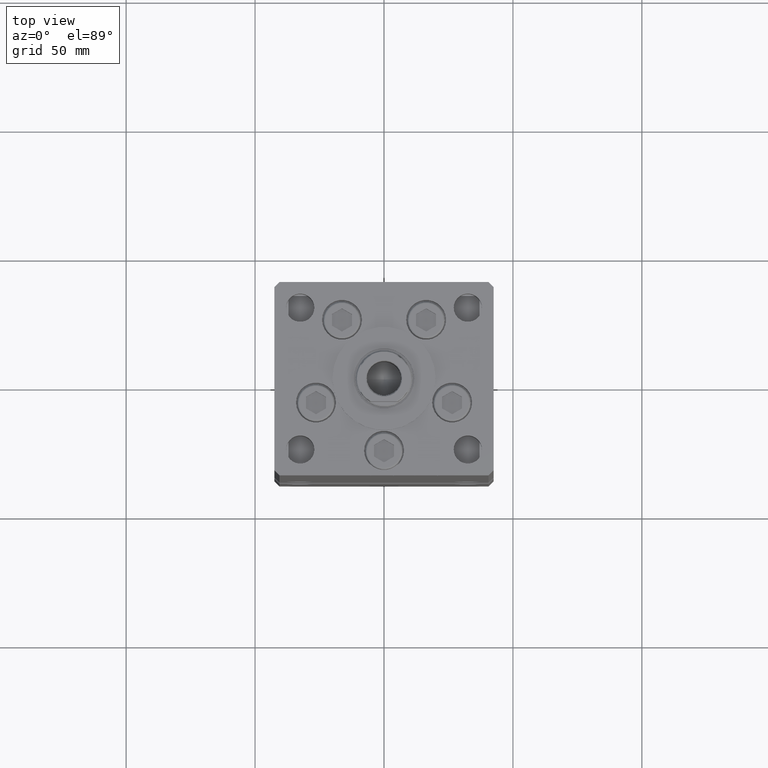
[diagram: clean part render]
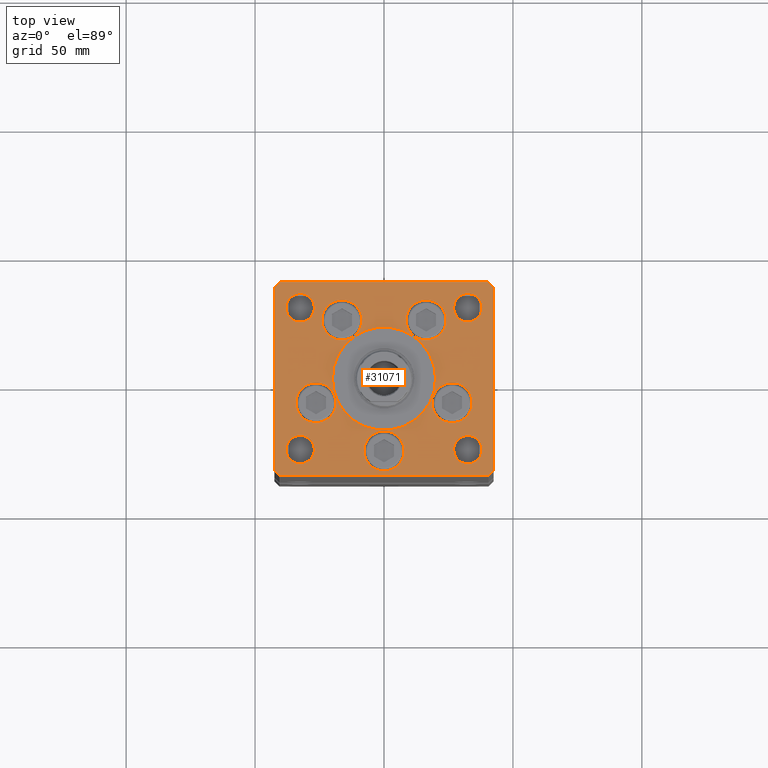
[diagram: same view with one face highlighted and labeled with its STEP entity id]
A machine part, top view. The second image highlights one B-rep face of the part: STEP entity #31071.
In plain terms, the highlighted planar face has unit normal (0, 0, 1).
Its self-contained STEP definition (entity closure, byte-faithful):
#140 = CARTESIAN_POINT ( 'NONE',  ( 16.32291334290544071, 22.74999999999999289, 0.000000000000000000 ) ) ;
#224 = CARTESIAN_POINT ( 'NONE',  ( -16.32291334290544071, 22.74999999999999289, 0.000000000000000000 ) ) ;
#411 = DIRECTION ( 'NONE',  ( 1.000000000000000000, 0.000000000000000000, 0.000000000000000000 ) ) ;
#438 = CARTESIAN_POINT ( 'NONE',  ( 0.000000000000000000, 0.000000000000000000, 0.000000000000000000 ) ) ;
#958 = VERTEX_POINT ( 'NONE', #39525 ) ;
#967 = CARTESIAN_POINT ( 'NONE',  ( 32.50000000000000000, -27.50000000000000355, 0.000000000000000000 ) ) ;
#992 = VERTEX_POINT ( 'NONE', #7016 ) ;
#1220 = CIRCLE ( 'NONE', #8932, 7.750000000000000000 ) ;
#1282 = DIRECTION ( 'NONE',  ( 1.000000000000000000, 0.000000000000000000, 0.000000000000000000 ) ) ;
#1475 = LINE ( 'NONE', #46095, #4327 ) ;
#1814 = CIRCLE ( 'NONE', #52471, 7.750000000000000000 ) ;
#1934 = VERTEX_POINT ( 'NONE', #5625 ) ;
#2290 = CIRCLE ( 'NONE', #7468, 5.499999999999998224 ) ;
#2396 = VERTEX_POINT ( 'NONE', #17576 ) ;
#2399 = VECTOR ( 'NONE', #21499, 1000.000000000000000 ) ;
#2525 = VERTEX_POINT ( 'NONE', #35765 ) ;
#2537 = VERTEX_POINT ( 'NONE', #40605 ) ;
#2950 = FACE_OUTER_BOUND ( 'NONE', #50323, .T. ) ;
#2974 = DIRECTION ( 'NONE',  ( 1.000000000000000000, 0.000000000000000000, 0.000000000000000000 ) ) ;
#3033 = EDGE_CURVE ( 'NONE', #25234, #45111, #42919, .T. ) ;
#3306 = EDGE_CURVE ( 'NONE', #28194, #25234, #36505, .T. ) ;
#3418 = EDGE_CURVE ( 'NONE', #52264, #2396, #48021, .T. ) ;
#3628 = CARTESIAN_POINT ( 'NONE',  ( 0.000000000000000000, -28.00000000000000000, 0.000000000000000000 ) ) ;
#3764 = CARTESIAN_POINT ( 'NONE',  ( 0.000000000000000000, -28.00000000000000000, 0.000000000000000000 ) ) ;
#3985 = CARTESIAN_POINT ( 'NONE',  ( -40.50000000000000711, -37.50000000000003553, 0.000000000000000000 ) ) ;
#4327 = VECTOR ( 'NONE', #33980, 1000.000000000000000 ) ;
#4392 = DIRECTION ( 'NONE',  ( 0.000000000000000000, 0.000000000000000000, 1.000000000000000000 ) ) ;
#4458 = ORIENTED_EDGE ( 'NONE', *, *, #37705, .F. ) ;
#4476 = PLANE ( 'NONE',  #6288 ) ;
#5046 = AXIS2_PLACEMENT_3D ( 'NONE', #3628, #32876, #17277 ) ;
#5061 = EDGE_CURVE ( 'NONE', #26540, #38386, #7583, .T. ) ;
#5538 = DIRECTION ( 'NONE',  ( -1.000000000000000000, 0.000000000000000000, 0.000000000000000000 ) ) ;
#5625 = CARTESIAN_POINT ( 'NONE',  ( 18.64865316429777664, -9.333333333333328596, 0.000000000000000000 ) ) ;
#5754 = CARTESIAN_POINT ( 'NONE',  ( 42.50000000000000711, -35.49999999999992895, 0.000000000000000000 ) ) ;
#5937 = EDGE_LOOP ( 'NONE', ( #4458, #8448 ) ) ;
#5940 = CARTESIAN_POINT ( 'NONE',  ( -32.50000000000000000, 27.50000000000000711, 0.000000000000000000 ) ) ;
#5986 = ORIENTED_EDGE ( 'NONE', *, *, #32814, .T. ) ;
#6243 = VERTEX_POINT ( 'NONE', #9358 ) ;
#6288 = AXIS2_PLACEMENT_3D ( 'NONE', #438, #24333, #28902 ) ;
#6315 = CARTESIAN_POINT ( 'NONE',  ( 27.00000000000000355, -27.50000000000000355, 0.000000000000000000 ) ) ;
#6708 = FACE_BOUND ( 'NONE', #47137, .T. ) ;
#6965 = CIRCLE ( 'NONE', #41304, 5.499999999999998224 ) ;
#6991 = CARTESIAN_POINT ( 'NONE',  ( 34.14865316429777664, -9.333333333333330373, 0.000000000000000000 ) ) ;
#7016 = CARTESIAN_POINT ( 'NONE',  ( -27.00000000000000355, -27.50000000000000355, 0.000000000000000000 ) ) ;
#7468 = AXIS2_PLACEMENT_3D ( 'NONE', #35632, #52041, #15202 ) ;
#7475 = AXIS2_PLACEMENT_3D ( 'NONE', #17699, #41396, #9651 ) ;
#7583 = CIRCLE ( 'NONE', #16146, 20.00000000000000000 ) ;
#8448 = ORIENTED_EDGE ( 'NONE', *, *, #44078, .F. ) ;
#8507 = VECTOR ( 'NONE', #42115, 1000.000000000000000 ) ;
#8563 = CARTESIAN_POINT ( 'NONE',  ( 32.50000000000000000, 27.49999999999999645, 0.000000000000000000 ) ) ;
#8591 = EDGE_CURVE ( 'NONE', #39410, #28279, #30872, .T. ) ;
#8625 = CARTESIAN_POINT ( 'NONE',  ( -7.750000000000000000, -28.00000000000000000, 0.000000000000000000 ) ) ;
#8668 = CARTESIAN_POINT ( 'NONE',  ( -32.50000000000000000, -27.50000000000000355, 0.000000000000000000 ) ) ;
#8718 = DIRECTION ( 'NONE',  ( 1.000000000000000000, 0.000000000000000000, 0.000000000000000000 ) ) ;
#8932 = AXIS2_PLACEMENT_3D ( 'NONE', #18992, #34586, #25979 ) ;
#9057 = ORIENTED_EDGE ( 'NONE', *, *, #49131, .F. ) ;
#9105 = EDGE_CURVE ( 'NONE', #44599, #2525, #49258, .T. ) ;
#9358 = CARTESIAN_POINT ( 'NONE',  ( -24.07291334290544071, 22.74999999999999289, 0.000000000000000000 ) ) ;
#9559 = AXIS2_PLACEMENT_3D ( 'NONE', #26711, #36629, #43915 ) ;
#9589 = AXIS2_PLACEMENT_3D ( 'NONE', #23342, #52404, #51601 ) ;
#9592 = CARTESIAN_POINT ( 'NONE',  ( 42.50000000000000711, -35.49999999999992895, 0.000000000000000000 ) ) ;
#9651 = DIRECTION ( 'NONE',  ( -1.000000000000000000, 0.000000000000000000, 0.000000000000000000 ) ) ;
#10011 = CARTESIAN_POINT ( 'NONE',  ( 40.50000000000000711, 37.50000000000000711, 0.000000000000000000 ) ) ;
#10036 = VECTOR ( 'NONE', #20346, 1000.000000000000000 ) ;
#10048 = DIRECTION ( 'NONE',  ( 1.000000000000000000, 0.000000000000000000, 0.000000000000000000 ) ) ;
#10578 = EDGE_CURVE ( 'NONE', #15144, #44599, #1475, .T. ) ;
#10752 = VERTEX_POINT ( 'NONE', #6315 ) ;
#10993 = FACE_BOUND ( 'NONE', #51781, .T. ) ;
#11621 = CARTESIAN_POINT ( 'NONE',  ( 38.00000000000000000, -27.50000000000000355, 0.000000000000000000 ) ) ;
#12043 = DIRECTION ( 'NONE',  ( 0.000000000000000000, 0.000000000000000000, 1.000000000000000000 ) ) ;
#12251 = FACE_BOUND ( 'NONE', #18717, .T. ) ;
#12305 = ORIENTED_EDGE ( 'NONE', *, *, #40983, .T. ) ;
#12446 = EDGE_CURVE ( 'NONE', #10752, #17252, #6965, .T. ) ;
#12521 = FACE_BOUND ( 'NONE', #12972, .T. ) ;
#12608 = VECTOR ( 'NONE', #24509, 1000.000000000000000 ) ;
#12903 = EDGE_CURVE ( 'NONE', #49101, #41988, #1814, .T. ) ;
#12972 = EDGE_LOOP ( 'NONE', ( #14600, #45196 ) ) ;
#13094 = DIRECTION ( 'NONE',  ( 1.000000000000000000, 0.000000000000000000, 0.000000000000000000 ) ) ;
#13234 = CARTESIAN_POINT ( 'NONE',  ( -42.50000000000000711, 35.50000000000000000, 0.000000000000000000 ) ) ;
#13669 = ORIENTED_EDGE ( 'NONE', *, *, #15588, .F. ) ;
#14098 = CIRCLE ( 'NONE', #43266, 5.499999999999998224 ) ;
#14169 = EDGE_CURVE ( 'NONE', #38386, #26540, #25013, .T. ) ;
#14600 = ORIENTED_EDGE ( 'NONE', *, *, #3418, .F. ) ;
#14856 = ORIENTED_EDGE ( 'NONE', *, *, #12446, .T. ) ;
#15144 = VERTEX_POINT ( 'NONE', #28841 ) ;
#15202 = DIRECTION ( 'NONE',  ( 1.000000000000000000, 0.000000000000000000, 0.000000000000000000 ) ) ;
#15411 = EDGE_LOOP ( 'NONE', ( #5986, #14856 ) ) ;
#15588 = EDGE_CURVE ( 'NONE', #28279, #39410, #19068, .T. ) ;
#15813 = ORIENTED_EDGE ( 'NONE', *, *, #42162, .F. ) ;
#16000 = AXIS2_PLACEMENT_3D ( 'NONE', #40588, #44885, #44624 ) ;
#16084 = DIRECTION ( 'NONE',  ( 0.000000000000000000, 0.000000000000000000, 1.000000000000000000 ) ) ;
#16146 = AXIS2_PLACEMENT_3D ( 'NONE', #47849, #39515, #2974 ) ;
#17252 = VERTEX_POINT ( 'NONE', #11621 ) ;
#17277 = DIRECTION ( 'NONE',  ( 1.000000000000000000, 0.000000000000000000, 0.000000000000000000 ) ) ;
#17342 = DIRECTION ( 'NONE',  ( -0.000000000000000000, -0.000000000000000000, -1.000000000000000000 ) ) ;
#17411 = EDGE_CURVE ( 'NONE', #958, #31813, #37989, .T. ) ;
#17576 = CARTESIAN_POINT ( 'NONE',  ( 27.00000000000000355, 27.49999999999999645, 0.000000000000000000 ) ) ;
#17699 = CARTESIAN_POINT ( 'NONE',  ( -32.50000000000000000, 27.50000000000000711, 0.000000000000000000 ) ) ;
#17828 = CARTESIAN_POINT ( 'NONE',  ( 32.50000000000000000, 27.49999999999999645, 0.000000000000000000 ) ) ;
#18179 = ORIENTED_EDGE ( 'NONE', *, *, #38876, .F. ) ;
#18394 = CARTESIAN_POINT ( 'NONE',  ( 42.50000000000001421, 35.50000000000002132, 0.000000000000000000 ) ) ;
#18543 = CIRCLE ( 'NONE', #16000, 7.750000000000000000 ) ;
#18717 = EDGE_LOOP ( 'NONE', ( #50245, #48079 ) ) ;
#18992 = CARTESIAN_POINT ( 'NONE',  ( 26.39865316429777664, -9.333333333333330373, 0.000000000000000000 ) ) ;
#19068 = CIRCLE ( 'NONE', #9589, 7.750000000000000000 ) ;
#19138 = ORIENTED_EDGE ( 'NONE', *, *, #47862, .F. ) ;
#19467 = CIRCLE ( 'NONE', #7475, 5.499999999999998224 ) ;
#19543 = EDGE_CURVE ( 'NONE', #2396, #52264, #50931, .T. ) ;
#19696 = CARTESIAN_POINT ( 'NONE',  ( -26.39865316429777664, -9.333333333333330373, 0.000000000000000000 ) ) ;
#20039 = CARTESIAN_POINT ( 'NONE',  ( 40.50000000000001421, -37.49999999999992184, 0.000000000000000000 ) ) ;
#20346 = DIRECTION ( 'NONE',  ( 1.000000000000000000, 1.370645709413773283E-15, 0.000000000000000000 ) ) ;
#20745 = CARTESIAN_POINT ( 'NONE',  ( 42.50000000000001421, 35.50000000000002132, 0.000000000000000000 ) ) ;
#20940 = VERTEX_POINT ( 'NONE', #29548 ) ;
#21019 = CARTESIAN_POINT ( 'NONE',  ( 24.07291334290544071, 22.74999999999999289, 0.000000000000000000 ) ) ;
#21142 = AXIS2_PLACEMENT_3D ( 'NONE', #38619, #49923, #13094 ) ;
#21161 = DIRECTION ( 'NONE',  ( -0.000000000000000000, -0.000000000000000000, -1.000000000000000000 ) ) ;
#21499 = DIRECTION ( 'NONE',  ( -1.000000000000000000, -4.283267841918041508E-16, 0.000000000000000000 ) ) ;
#21591 = DIRECTION ( 'NONE',  ( 0.000000000000000000, 0.000000000000000000, 1.000000000000000000 ) ) ;
#21678 = DIRECTION ( 'NONE',  ( 0.000000000000000000, 0.000000000000000000, 1.000000000000000000 ) ) ;
#22721 = VERTEX_POINT ( 'NONE', #36059 ) ;
#22915 = VERTEX_POINT ( 'NONE', #6991 ) ;
#23075 = ORIENTED_EDGE ( 'NONE', *, *, #40069, .F. ) ;
#23134 = ORIENTED_EDGE ( 'NONE', *, *, #40617, .T. ) ;
#23335 = FACE_BOUND ( 'NONE', #5937, .T. ) ;
#23342 = CARTESIAN_POINT ( 'NONE',  ( 16.32291334290544071, 22.74999999999999289, 0.000000000000000000 ) ) ;
#23786 = AXIS2_PLACEMENT_3D ( 'NONE', #224, #12043, #44836 ) ;
#24218 = ORIENTED_EDGE ( 'NONE', *, *, #3306, .T. ) ;
#24309 = ORIENTED_EDGE ( 'NONE', *, *, #32928, .F. ) ;
#24333 = DIRECTION ( 'NONE',  ( -0.000000000000000000, 0.000000000000000000, 1.000000000000000000 ) ) ;
#24507 = CARTESIAN_POINT ( 'NONE',  ( -42.50000000000000711, 35.50000000000000000, 0.000000000000000000 ) ) ;
#24509 = DIRECTION ( 'NONE',  ( -0.7071067811865524577, 0.7071067811865426878, 0.000000000000000000 ) ) ;
#24631 = CIRCLE ( 'NONE', #23786, 7.750000000000000000 ) ;
#24768 = CARTESIAN_POINT ( 'NONE',  ( -8.572913342905440715, 22.74999999999999289, 0.000000000000000000 ) ) ;
#24827 = AXIS2_PLACEMENT_3D ( 'NONE', #8563, #21678, #1282 ) ;
#24867 = FACE_BOUND ( 'NONE', #52306, .T. ) ;
#25013 = CIRCLE ( 'NONE', #9559, 20.00000000000000000 ) ;
#25234 = VERTEX_POINT ( 'NONE', #5754 ) ;
#25414 = VERTEX_POINT ( 'NONE', #24768 ) ;
#25979 = DIRECTION ( 'NONE',  ( 1.000000000000000000, 0.000000000000000000, 0.000000000000000000 ) ) ;
#26069 = DIRECTION ( 'NONE',  ( -0.000000000000000000, -0.000000000000000000, -1.000000000000000000 ) ) ;
#26540 = VERTEX_POINT ( 'NONE', #44898 ) ;
#26609 = ORIENTED_EDGE ( 'NONE', *, *, #8591, .F. ) ;
#26711 = CARTESIAN_POINT ( 'NONE',  ( 0.000000000000000000, -6.938893903907228378E-15, 0.000000000000000000 ) ) ;
#27630 = LINE ( 'NONE', #3985, #10036 ) ;
#27647 = FACE_BOUND ( 'NONE', #48226, .T. ) ;
#28177 = DIRECTION ( 'NONE',  ( 0.7071067811865474617, 0.7071067811865474617, 0.000000000000000000 ) ) ;
#28194 = VERTEX_POINT ( 'NONE', #20039 ) ;
#28279 = VERTEX_POINT ( 'NONE', #38286 ) ;
#28551 = LINE ( 'NONE', #20745, #12608 ) ;
#28826 = AXIS2_PLACEMENT_3D ( 'NONE', #8668, #32297, #48716 ) ;
#28841 = CARTESIAN_POINT ( 'NONE',  ( -40.50000000000000000, 37.49999999999997158, 0.000000000000000000 ) ) ;
#28902 = DIRECTION ( 'NONE',  ( 1.000000000000000000, 0.000000000000000000, 0.000000000000000000 ) ) ;
#29548 = CARTESIAN_POINT ( 'NONE',  ( -38.00000000000000000, -27.50000000000000355, 0.000000000000000000 ) ) ;
#29732 = CIRCLE ( 'NONE', #34024, 7.750000000000000000 ) ;
#29829 = LINE ( 'NONE', #41169, #2399 ) ;
#30414 = EDGE_LOOP ( 'NONE', ( #19138, #15813 ) ) ;
#30872 = CIRCLE ( 'NONE', #32562, 7.750000000000000000 ) ;
#31071 = ADVANCED_FACE ( 'NONE', ( #12251, #31133, #6708, #24867, #10993, #43791, #27647, #12521, #23335, #2950, #41286 ), #4476, .T. ) ;
#31133 = FACE_BOUND ( 'NONE', #30414, .T. ) ;
#31518 = VERTEX_POINT ( 'NONE', #10011 ) ;
#31813 = VERTEX_POINT ( 'NONE', #32209 ) ;
#32201 = CARTESIAN_POINT ( 'NONE',  ( 40.50000000000001421, -37.49999999999992184, 0.000000000000000000 ) ) ;
#32209 = CARTESIAN_POINT ( 'NONE',  ( -27.00000000000000355, 27.50000000000000711, 0.000000000000000000 ) ) ;
#32297 = DIRECTION ( 'NONE',  ( 0.000000000000000000, 0.000000000000000000, 1.000000000000000000 ) ) ;
#32383 = ORIENTED_EDGE ( 'NONE', *, *, #10578, .T. ) ;
#32562 = AXIS2_PLACEMENT_3D ( 'NONE', #140, #37218, #411 ) ;
#32814 = EDGE_CURVE ( 'NONE', #17252, #10752, #14098, .T. ) ;
#32876 = DIRECTION ( 'NONE',  ( 0.000000000000000000, 0.000000000000000000, 1.000000000000000000 ) ) ;
#32928 = EDGE_CURVE ( 'NONE', #1934, #22915, #1220, .T. ) ;
#33523 = DIRECTION ( 'NONE',  ( -1.000000000000000000, 0.000000000000000000, 0.000000000000000000 ) ) ;
#33933 = CARTESIAN_POINT ( 'NONE',  ( -16.32291334290544071, 22.74999999999999289, 0.000000000000000000 ) ) ;
#33980 = DIRECTION ( 'NONE',  ( -0.7071067811865536790, -0.7071067811865414665, 0.000000000000000000 ) ) ;
#34024 = AXIS2_PLACEMENT_3D ( 'NONE', #19696, #4392, #40400 ) ;
#34169 = CIRCLE ( 'NONE', #5046, 7.750000000000000000 ) ;
#34318 = CARTESIAN_POINT ( 'NONE',  ( -40.50000000000000711, -37.50000000000003553, 0.000000000000000000 ) ) ;
#34586 = DIRECTION ( 'NONE',  ( 0.000000000000000000, 0.000000000000000000, 1.000000000000000000 ) ) ;
#34778 = ORIENTED_EDGE ( 'NONE', *, *, #9105, .T. ) ;
#35632 = CARTESIAN_POINT ( 'NONE',  ( -32.50000000000000000, -27.50000000000000355, 0.000000000000000000 ) ) ;
#35765 = CARTESIAN_POINT ( 'NONE',  ( -42.50000000000000000, -35.50000000000004263, 0.000000000000000000 ) ) ;
#35879 = CIRCLE ( 'NONE', #36722, 7.750000000000000000 ) ;
#36059 = CARTESIAN_POINT ( 'NONE',  ( -34.14865316429777664, -9.333333333333328596, 0.000000000000000000 ) ) ;
#36488 = ORIENTED_EDGE ( 'NONE', *, *, #48181, .T. ) ;
#36505 = LINE ( 'NONE', #32201, #52322 ) ;
#36629 = DIRECTION ( 'NONE',  ( 0.000000000000000000, 0.000000000000000000, 1.000000000000000000 ) ) ;
#36722 = AXIS2_PLACEMENT_3D ( 'NONE', #33933, #45529, #8718 ) ;
#37051 = ORIENTED_EDGE ( 'NONE', *, *, #17411, .T. ) ;
#37218 = DIRECTION ( 'NONE',  ( 0.000000000000000000, 0.000000000000000000, 1.000000000000000000 ) ) ;
#37328 = DIRECTION ( 'NONE',  ( 1.000000000000000000, 0.000000000000000000, 0.000000000000000000 ) ) ;
#37555 = CARTESIAN_POINT ( 'NONE',  ( -42.50000000000000000, -35.50000000000004263, 0.000000000000000000 ) ) ;
#37705 = EDGE_CURVE ( 'NONE', #992, #20940, #42566, .T. ) ;
#37989 = CIRCLE ( 'NONE', #43137, 5.499999999999998224 ) ;
#38001 = ORIENTED_EDGE ( 'NONE', *, *, #41314, .T. ) ;
#38286 = CARTESIAN_POINT ( 'NONE',  ( 8.572913342905442491, 22.74999999999999289, 0.000000000000000000 ) ) ;
#38386 = VERTEX_POINT ( 'NONE', #42038 ) ;
#38544 = ORIENTED_EDGE ( 'NONE', *, *, #40576, .F. ) ;
#38619 = CARTESIAN_POINT ( 'NONE',  ( 26.39865316429777664, -9.333333333333330373, 0.000000000000000000 ) ) ;
#38857 = CARTESIAN_POINT ( 'NONE',  ( 38.00000000000000000, 27.49999999999999645, 0.000000000000000000 ) ) ;
#38876 = EDGE_CURVE ( 'NONE', #22721, #2537, #18543, .T. ) ;
#39410 = VERTEX_POINT ( 'NONE', #21019 ) ;
#39423 = ORIENTED_EDGE ( 'NONE', *, *, #12903, .F. ) ;
#39515 = DIRECTION ( 'NONE',  ( 0.000000000000000000, 0.000000000000000000, 1.000000000000000000 ) ) ;
#39525 = CARTESIAN_POINT ( 'NONE',  ( -38.00000000000000000, 27.50000000000000711, 0.000000000000000000 ) ) ;
#40069 = EDGE_CURVE ( 'NONE', #22915, #1934, #48641, .T. ) ;
#40339 = VECTOR ( 'NONE', #40662, 1000.000000000000000 ) ;
#40400 = DIRECTION ( 'NONE',  ( 1.000000000000000000, 0.000000000000000000, 0.000000000000000000 ) ) ;
#40576 = EDGE_CURVE ( 'NONE', #2537, #22721, #29732, .T. ) ;
#40588 = CARTESIAN_POINT ( 'NONE',  ( -26.39865316429777664, -9.333333333333330373, 0.000000000000000000 ) ) ;
#40605 = CARTESIAN_POINT ( 'NONE',  ( -18.64865316429777664, -9.333333333333330373, 0.000000000000000000 ) ) ;
#40617 = EDGE_CURVE ( 'NONE', #45111, #31518, #28551, .T. ) ;
#40662 = DIRECTION ( 'NONE',  ( 9.773090005503134168E-17, -1.000000000000000000, 0.000000000000000000 ) ) ;
#40983 = EDGE_CURVE ( 'NONE', #31813, #958, #19467, .T. ) ;
#41169 = CARTESIAN_POINT ( 'NONE',  ( 40.50000000000000711, 37.50000000000000711, 0.000000000000000000 ) ) ;
#41286 = FACE_BOUND ( 'NONE', #15411, .T. ) ;
#41295 = EDGE_CURVE ( 'NONE', #47115, #28194, #27630, .T. ) ;
#41304 = AXIS2_PLACEMENT_3D ( 'NONE', #967, #17342, #5538 ) ;
#41314 = EDGE_CURVE ( 'NONE', #2525, #47115, #41593, .T. ) ;
#41396 = DIRECTION ( 'NONE',  ( -0.000000000000000000, -0.000000000000000000, -1.000000000000000000 ) ) ;
#41593 = LINE ( 'NONE', #37555, #46100 ) ;
#41848 = DIRECTION ( 'NONE',  ( 0.7071067811865487940, -0.7071067811865463515, 0.000000000000000000 ) ) ;
#41988 = VERTEX_POINT ( 'NONE', #8625 ) ;
#42038 = CARTESIAN_POINT ( 'NONE',  ( 20.00000000000000000, -4.489600305612522259E-15, 0.000000000000000000 ) ) ;
#42115 = DIRECTION ( 'NONE',  ( 9.773090005503145261E-17, 1.000000000000000000, 0.000000000000000000 ) ) ;
#42162 = EDGE_CURVE ( 'NONE', #6243, #25414, #24631, .T. ) ;
#42566 = CIRCLE ( 'NONE', #28826, 5.499999999999998224 ) ;
#42919 = LINE ( 'NONE', #9592, #8507 ) ;
#43137 = AXIS2_PLACEMENT_3D ( 'NONE', #5940, #26069, #46786 ) ;
#43266 = AXIS2_PLACEMENT_3D ( 'NONE', #45112, #21161, #33523 ) ;
#43791 = FACE_BOUND ( 'NONE', #53175, .T. ) ;
#43915 = DIRECTION ( 'NONE',  ( 1.000000000000000000, 0.000000000000000000, 0.000000000000000000 ) ) ;
#44078 = EDGE_CURVE ( 'NONE', #20940, #992, #2290, .T. ) ;
#44599 = VERTEX_POINT ( 'NONE', #13234 ) ;
#44624 = DIRECTION ( 'NONE',  ( 1.000000000000000000, 0.000000000000000000, 0.000000000000000000 ) ) ;
#44836 = DIRECTION ( 'NONE',  ( 1.000000000000000000, 0.000000000000000000, 0.000000000000000000 ) ) ;
#44885 = DIRECTION ( 'NONE',  ( 0.000000000000000000, 0.000000000000000000, 1.000000000000000000 ) ) ;
#44898 = CARTESIAN_POINT ( 'NONE',  ( -20.00000000000000000, -6.938893903907228378E-15, 0.000000000000000000 ) ) ;
#45111 = VERTEX_POINT ( 'NONE', #18394 ) ;
#45112 = CARTESIAN_POINT ( 'NONE',  ( 32.50000000000000000, -27.50000000000000355, 0.000000000000000000 ) ) ;
#45196 = ORIENTED_EDGE ( 'NONE', *, *, #19543, .F. ) ;
#45529 = DIRECTION ( 'NONE',  ( 0.000000000000000000, 0.000000000000000000, 1.000000000000000000 ) ) ;
#46095 = CARTESIAN_POINT ( 'NONE',  ( -40.50000000000000000, 37.49999999999997158, 0.000000000000000000 ) ) ;
#46100 = VECTOR ( 'NONE', #41848, 1000.000000000000000 ) ;
#46786 = DIRECTION ( 'NONE',  ( -1.000000000000000000, 0.000000000000000000, 0.000000000000000000 ) ) ;
#47115 = VERTEX_POINT ( 'NONE', #34318 ) ;
#47137 = EDGE_LOOP ( 'NONE', ( #26609, #13669 ) ) ;
#47149 = ORIENTED_EDGE ( 'NONE', *, *, #3033, .T. ) ;
#47849 = CARTESIAN_POINT ( 'NONE',  ( 0.000000000000000000, -6.938893903907228378E-15, 0.000000000000000000 ) ) ;
#47862 = EDGE_CURVE ( 'NONE', #25414, #6243, #35879, .T. ) ;
#48021 = CIRCLE ( 'NONE', #24827, 5.499999999999998224 ) ;
#48079 = ORIENTED_EDGE ( 'NONE', *, *, #14169, .F. ) ;
#48181 = EDGE_CURVE ( 'NONE', #31518, #15144, #29829, .T. ) ;
#48226 = EDGE_LOOP ( 'NONE', ( #12305, #37051 ) ) ;
#48641 = CIRCLE ( 'NONE', #21142, 7.750000000000000000 ) ;
#48716 = DIRECTION ( 'NONE',  ( 1.000000000000000000, 0.000000000000000000, 0.000000000000000000 ) ) ;
#49101 = VERTEX_POINT ( 'NONE', #52539 ) ;
#49131 = EDGE_CURVE ( 'NONE', #41988, #49101, #34169, .T. ) ;
#49258 = LINE ( 'NONE', #24507, #40339 ) ;
#49923 = DIRECTION ( 'NONE',  ( 0.000000000000000000, 0.000000000000000000, 1.000000000000000000 ) ) ;
#50245 = ORIENTED_EDGE ( 'NONE', *, *, #5061, .F. ) ;
#50323 = EDGE_LOOP ( 'NONE', ( #38001, #52687, #24218, #47149, #23134, #36488, #32383, #34778 ) ) ;
#50931 = CIRCLE ( 'NONE', #51817, 5.499999999999998224 ) ;
#51601 = DIRECTION ( 'NONE',  ( 1.000000000000000000, 0.000000000000000000, 0.000000000000000000 ) ) ;
#51781 = EDGE_LOOP ( 'NONE', ( #39423, #9057 ) ) ;
#51817 = AXIS2_PLACEMENT_3D ( 'NONE', #17828, #21591, #10048 ) ;
#52041 = DIRECTION ( 'NONE',  ( 0.000000000000000000, 0.000000000000000000, 1.000000000000000000 ) ) ;
#52264 = VERTEX_POINT ( 'NONE', #38857 ) ;
#52306 = EDGE_LOOP ( 'NONE', ( #23075, #24309 ) ) ;
#52322 = VECTOR ( 'NONE', #28177, 1000.000000000000114 ) ;
#52404 = DIRECTION ( 'NONE',  ( 0.000000000000000000, 0.000000000000000000, 1.000000000000000000 ) ) ;
#52471 = AXIS2_PLACEMENT_3D ( 'NONE', #3764, #16084, #37328 ) ;
#52539 = CARTESIAN_POINT ( 'NONE',  ( 7.750000000000000000, -28.00000000000000000, 0.000000000000000000 ) ) ;
#52687 = ORIENTED_EDGE ( 'NONE', *, *, #41295, .T. ) ;
#53175 = EDGE_LOOP ( 'NONE', ( #38544, #18179 ) ) ;